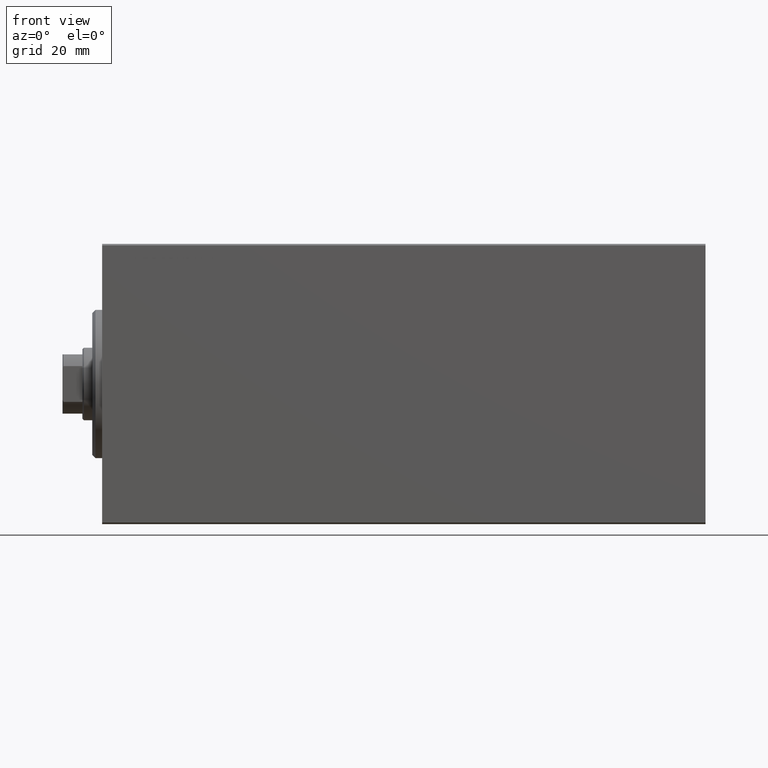
[diagram: clean part render]
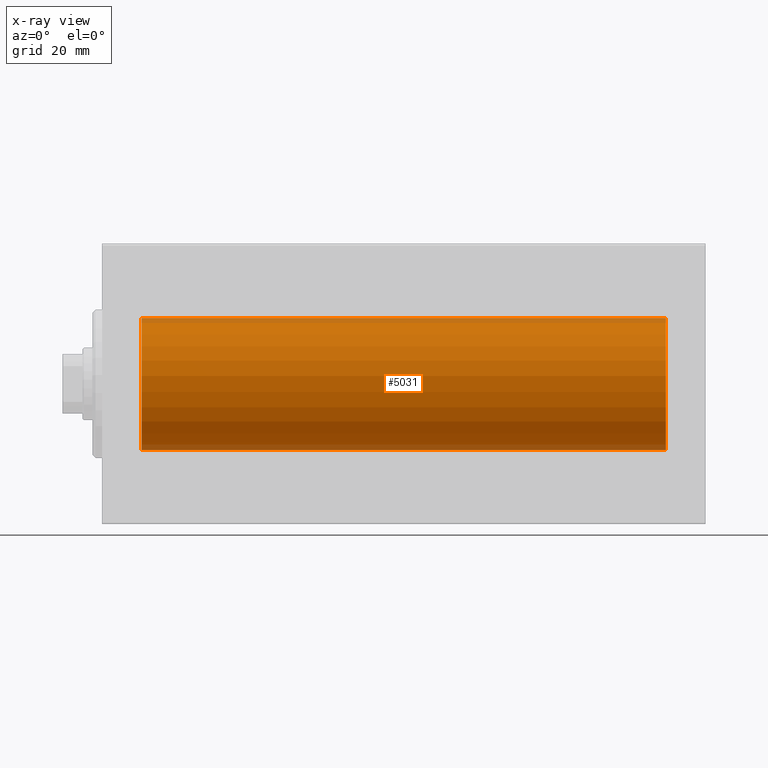
[diagram: x-ray — body ghosted, one internal face saturated and labeled with its STEP entity id]
A machine part, front view, then the same camera in x-ray: the body is ghosted and one INTERNAL B-rep face — a face not visible from any outside direction — is saturated and labeled: STEP entity #5031.
In plain terms, the highlighted cylindrical surface (partial cylindrical patch) has radius 20 mm, axis along (-1, -0, -0).
Its self-contained STEP definition (entity closure, byte-faithful):
#45 = AXIS2_PLACEMENT_3D ( 'NONE', #25537, #8598, #35818 ) ;
#1387 = VECTOR ( 'NONE', #2469, 1000.000000000000000 ) ;
#2469 = DIRECTION ( 'NONE',  ( -1.000000000000000000, -0.000000000000000000, -0.000000000000000000 ) ) ;
#2730 = VERTEX_POINT ( 'NONE', #14697 ) ;
#4561 = EDGE_CURVE ( 'NONE', #15193, #44094, #26998, .T. ) ;
#5031 = ADVANCED_FACE ( 'NONE', ( #36680 ), #5674, .F. ) ;
#5674 = CYLINDRICAL_SURFACE ( 'NONE', #41993, 20.00000000000000000 ) ;
#7110 = CARTESIAN_POINT ( 'NONE',  ( 12.00000000000001066, 0.000000000000000000, 0.000000000000000000 ) ) ;
#7117 = CIRCLE ( 'NONE', #12108, 20.00000000000000000 ) ;
#7880 = EDGE_LOOP ( 'NONE', ( #37862, #28668, #13593, #11339 ) ) ;
#8598 = DIRECTION ( 'NONE',  ( -1.000000000000000000, 0.000000000000000000, 0.000000000000000000 ) ) ;
#10465 = CARTESIAN_POINT ( 'NONE',  ( 12.00000000000001066, 0.000000000000000000, 20.00000000000000000 ) ) ;
#11339 = ORIENTED_EDGE ( 'NONE', *, *, #4561, .F. ) ;
#12108 = AXIS2_PLACEMENT_3D ( 'NONE', #7110, #20701, #27632 ) ;
#13544 = EDGE_CURVE ( 'NONE', #28548, #44094, #7117, .T. ) ;
#13593 = ORIENTED_EDGE ( 'NONE', *, *, #13544, .T. ) ;
#14697 = CARTESIAN_POINT ( 'NONE',  ( 171.0000000000000000, 2.449293598294706513E-15, -20.00000000000000000 ) ) ;
#14901 = EDGE_CURVE ( 'NONE', #2730, #15193, #19251, .T. ) ;
#15193 = VERTEX_POINT ( 'NONE', #33060 ) ;
#19251 = CIRCLE ( 'NONE', #45, 20.00000000000000000 ) ;
#20701 = DIRECTION ( 'NONE',  ( -1.000000000000000000, 0.000000000000000000, 0.000000000000000000 ) ) ;
#21362 = CARTESIAN_POINT ( 'NONE',  ( 171.0000000000000000, 2.449293598294706513E-15, -20.00000000000000000 ) ) ;
#24286 = DIRECTION ( 'NONE',  ( -1.000000000000000000, -0.000000000000000000, -0.000000000000000000 ) ) ;
#24508 = LINE ( 'NONE', #21362, #30242 ) ;
#25537 = CARTESIAN_POINT ( 'NONE',  ( 171.0000000000000000, 0.000000000000000000, 0.000000000000000000 ) ) ;
#25745 = DIRECTION ( 'NONE',  ( -1.000000000000000000, -0.000000000000000000, -0.000000000000000000 ) ) ;
#25962 = CARTESIAN_POINT ( 'NONE',  ( 171.0000000000000000, 0.000000000000000000, 0.000000000000000000 ) ) ;
#26998 = LINE ( 'NONE', #30342, #1387 ) ;
#27632 = DIRECTION ( 'NONE',  ( 0.000000000000000000, 0.000000000000000000, 1.000000000000000000 ) ) ;
#28548 = VERTEX_POINT ( 'NONE', #39786 ) ;
#28668 = ORIENTED_EDGE ( 'NONE', *, *, #30973, .T. ) ;
#30242 = VECTOR ( 'NONE', #24286, 1000.000000000000000 ) ;
#30342 = CARTESIAN_POINT ( 'NONE',  ( 171.0000000000000000, 0.000000000000000000, 20.00000000000000000 ) ) ;
#30973 = EDGE_CURVE ( 'NONE', #2730, #28548, #24508, .T. ) ;
#33060 = CARTESIAN_POINT ( 'NONE',  ( 171.0000000000000000, 0.000000000000000000, 20.00000000000000000 ) ) ;
#35818 = DIRECTION ( 'NONE',  ( 0.000000000000000000, 0.000000000000000000, 1.000000000000000000 ) ) ;
#36680 = FACE_OUTER_BOUND ( 'NONE', #7880, .T. ) ;
#37862 = ORIENTED_EDGE ( 'NONE', *, *, #14901, .F. ) ;
#39590 = DIRECTION ( 'NONE',  ( 0.000000000000000000, 0.000000000000000000, 1.000000000000000000 ) ) ;
#39786 = CARTESIAN_POINT ( 'NONE',  ( 12.00000000000001066, 2.449293598294706513E-15, -20.00000000000000000 ) ) ;
#41993 = AXIS2_PLACEMENT_3D ( 'NONE', #25962, #25745, #39590 ) ;
#44094 = VERTEX_POINT ( 'NONE', #10465 ) ;